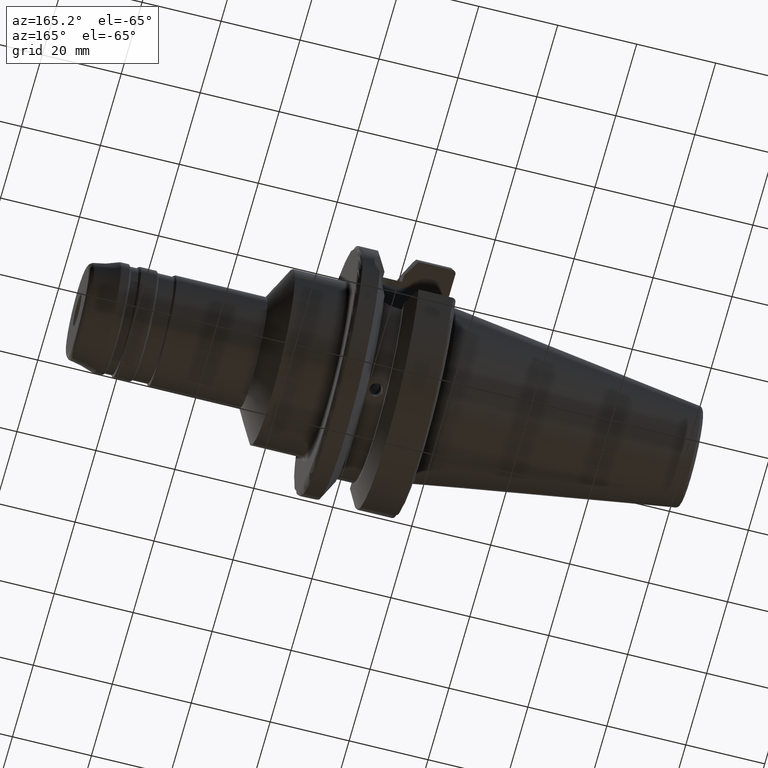
[diagram: clean part render]
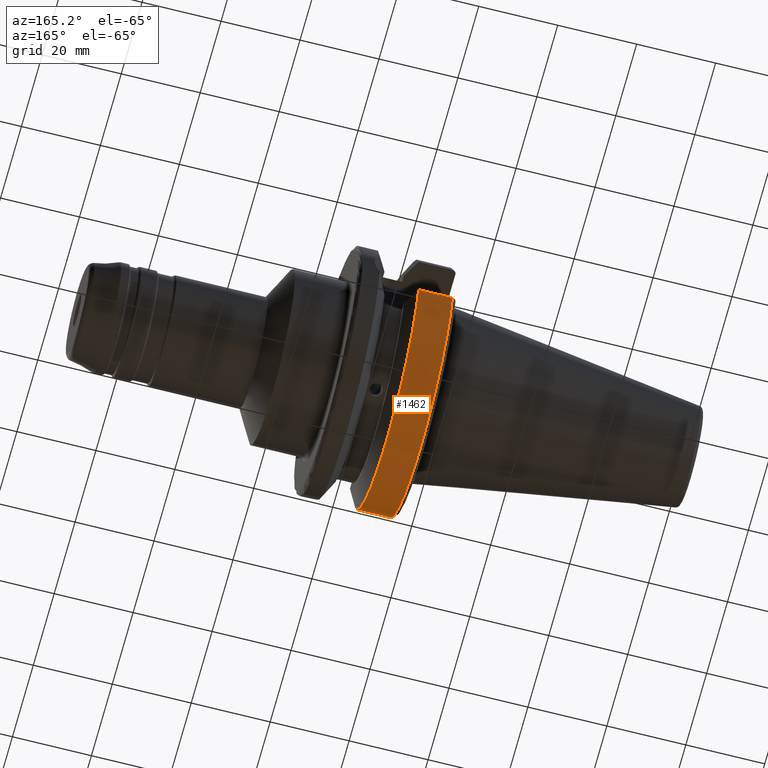
[diagram: same view with one face highlighted and labeled with its STEP entity id]
A machine part, auxiliary view. The second image highlights one B-rep face of the part: STEP entity #1462.
In plain terms, the highlighted cylindrical surface (partial cylindrical patch) has radius 31.5 mm, axis along (1, 0, 0).
Its self-contained STEP definition (entity closure, byte-faithful):
#143=CYLINDRICAL_SURFACE('',#1663,31.5);
#214=FACE_OUTER_BOUND('',#314,.T.);
#314=EDGE_LOOP('',(#1248,#1249,#1250,#1251));
#394=LINE('',#2697,#467);
#401=LINE('',#2762,#474);
#467=VECTOR('',#2039,10.);
#474=VECTOR('',#2082,10.);
#561=CIRCLE('',#1662,31.5000000000001);
#562=CIRCLE('',#1664,31.5);
#685=VERTEX_POINT('',#2685);
#686=VERTEX_POINT('',#2696);
#697=VERTEX_POINT('',#2754);
#698=VERTEX_POINT('',#2760);
#872=EDGE_CURVE('',#686,#685,#394,.T.);
#891=EDGE_CURVE('',#686,#697,#561,.T.);
#893=EDGE_CURVE('',#685,#698,#562,.T.);
#894=EDGE_CURVE('',#698,#697,#401,.T.);
#1248=ORIENTED_EDGE('',*,*,#872,.T.);
#1249=ORIENTED_EDGE('',*,*,#893,.T.);
#1250=ORIENTED_EDGE('',*,*,#894,.T.);
#1251=ORIENTED_EDGE('',*,*,#891,.F.);
#1462=ADVANCED_FACE('',(#214),#143,.T.);
#1662=AXIS2_PLACEMENT_3D('',#2755,#2076,#2077);
#1663=AXIS2_PLACEMENT_3D('',#2759,#2078,#2079);
#1664=AXIS2_PLACEMENT_3D('',#2761,#2080,#2081);
#2039=DIRECTION('',(-1.,0.,0.));
#2076=DIRECTION('center_axis',(1.,0.,0.));
#2077=DIRECTION('ref_axis',(0.,0.,-1.));
#2078=DIRECTION('center_axis',(1.,0.,0.));
#2079=DIRECTION('ref_axis',(0.,1.,0.));
#2080=DIRECTION('center_axis',(1.,0.,0.));
#2081=DIRECTION('ref_axis',(0.,0.,-1.));
#2082=DIRECTION('',(1.,0.,0.));
#2685=CARTESIAN_POINT('',(2.99999999999999,-30.4540227227866,-8.05));
#2696=CARTESIAN_POINT('',(11.5690363073382,-30.4540227227866,-8.05));
#2697=CARTESIAN_POINT('',(7.28451815366907,-30.4540227227866,-8.05));
#2754=CARTESIAN_POINT('',(11.5690363073382,30.4540227227866,-8.05));
#2755=CARTESIAN_POINT('Origin',(11.5690363073382,0.,0.));
#2759=CARTESIAN_POINT('Origin',(7.28451815366907,0.,0.));
#2760=CARTESIAN_POINT('',(2.99999999999999,30.4540227227866,-8.05));
#2761=CARTESIAN_POINT('Origin',(2.99999999999999,0.,0.));
#2762=CARTESIAN_POINT('',(7.28451815366907,30.4540227227866,-8.05));